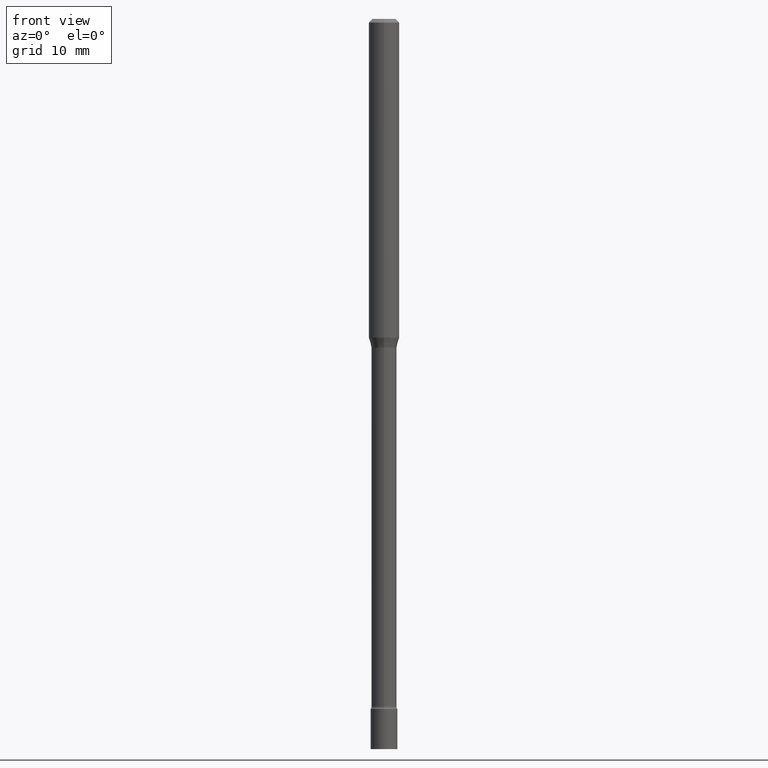
[diagram: clean part render]
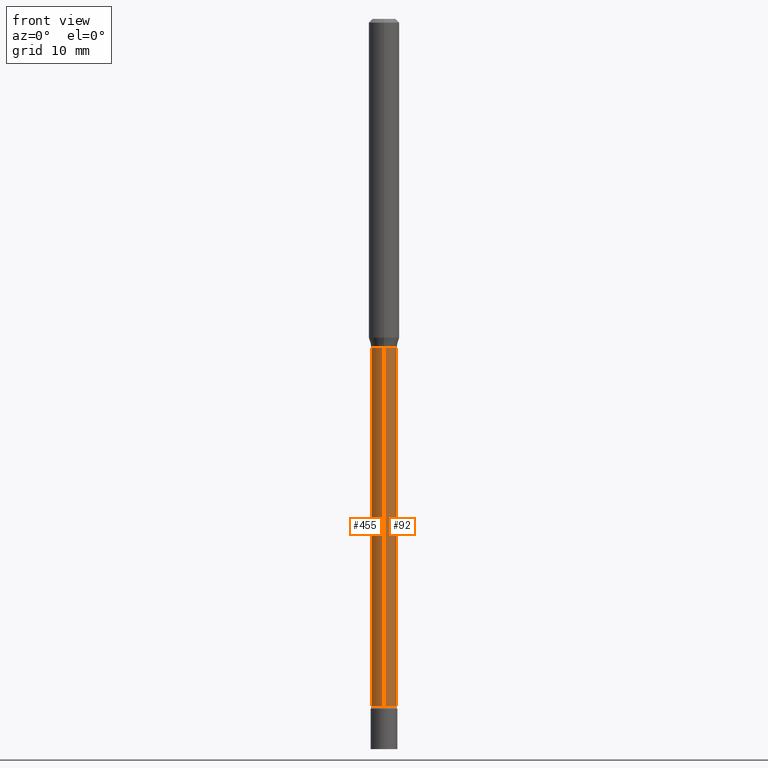
[diagram: same view with one multi-face feature highlighted, each face labeled with its STEP entity id]
A machine part, front view. The highlighted faces form ONE feature: a constant-radius fillet chain: 2 tangent blend faces with common blend radius 1.3132 mm. The faces share edges in the B-rep.
Their STEP definitions:
[1] entity #92 (Cylinder):
#9 = CARTESIAN_POINT ( 'NONE',  ( -3.610191704363808417E-16, -0.05170000000000012780, 1.805107173320482273E-16 ) ) ;
#34 = ORIENTED_EDGE ( 'NONE', *, *, #513, .F. ) ;
#36 = DIRECTION ( 'NONE',  ( -6.982962677686265922E-15, -1.000000000000000000, 3.491503236596668913E-15 ) ) ;
#44 = VERTEX_POINT ( 'NONE', #105 ) ;
#60 = CARTESIAN_POINT ( 'NONE',  ( 6.909905994532571986E-29, -9.865638007779597424E-15, -2.825613307291703347 ) ) ;
#67 = EDGE_CURVE ( 'NONE', #44, #433, #512, .T. ) ;
#92 = ADVANCED_FACE ( 'NONE', ( #505 ), #227, .T. ) ;
#105 = CARTESIAN_POINT ( 'NONE',  ( -3.610191704363469207E-16, -0.05170000000000472135, -1.351974787463811056 ) ) ;
#127 = EDGE_CURVE ( 'NONE', #279, #365, #254, .T. ) ;
#146 = DIRECTION ( 'NONE',  ( -6.982962677686266711E-15, -1.000000000000000000, 5.284038672464726492E-15 ) ) ;
#147 = CARTESIAN_POINT ( 'NONE',  ( -3.610191704363126052E-16, -0.05170000000001011287, -2.825613307291703347 ) ) ;
#149 = AXIS2_PLACEMENT_3D ( 'NONE', #430, #509, #146 ) ;
#153 = CARTESIAN_POINT ( 'NONE',  ( 0.000000000000000000, 0.000000000000000000, 0.000000000000000000 ) ) ;
#154 = DIRECTION ( 'NONE',  ( -2.445453515065579470E-29, 3.491503236596668913E-15, 1.000000000000000000 ) ) ;
#191 = ORIENTED_EDGE ( 'NONE', *, *, #67, .F. ) ;
#227 = CYLINDRICAL_SURFACE ( 'NONE', #457, 0.05170000000000012780 ) ;
#234 = LINE ( 'NONE', #398, #443 ) ;
#241 = DIRECTION ( 'NONE',  ( -2.445453515065579470E-29, 3.491503236596668913E-15, 1.000000000000000000 ) ) ;
#254 = CIRCLE ( 'NONE', #406, 0.05170000000000024576 ) ;
#268 = CARTESIAN_POINT ( 'NONE',  ( 3.790745495280832746E-16, 0.05169999999999037865, -2.825613307291703347 ) ) ;
#278 = EDGE_LOOP ( 'NONE', ( #474, #395, #191, #34 ) ) ;
#279 = VERTEX_POINT ( 'NONE', #147 ) ;
#365 = VERTEX_POINT ( 'NONE', #268 ) ;
#368 = EDGE_CURVE ( 'NONE', #365, #433, #234, .T. ) ;
#372 = LINE ( 'NONE', #9, #376 ) ;
#376 = VECTOR ( 'NONE', #241, 39.37007874015748143 ) ;
#395 = ORIENTED_EDGE ( 'NONE', *, *, #368, .T. ) ;
#398 = CARTESIAN_POINT ( 'NONE',  ( 3.673505943879726548E-16, 0.05170000000000012780, -1.805107173320482273E-16 ) ) ;
#406 = AXIS2_PLACEMENT_3D ( 'NONE', #60, #454, #418 ) ;
#418 = DIRECTION ( 'NONE',  ( -6.982962677686265922E-15, -1.000000000000000000, 0.000000000000000000 ) ) ;
#430 = CARTESIAN_POINT ( 'NONE',  ( 3.306191496283416407E-29, -4.720424346226990605E-15, -1.351974787463811278 ) ) ;
#433 = VERTEX_POINT ( 'NONE', #437 ) ;
#437 = CARTESIAN_POINT ( 'NONE',  ( 3.673505943880415323E-16, 0.05169999999999527751, -1.351974787463811722 ) ) ;
#443 = VECTOR ( 'NONE', #154, 39.37007874015748143 ) ;
#452 = DIRECTION ( 'NONE',  ( -2.445453515065579190E-29, 3.491503236596668519E-15, 1.000000000000000000 ) ) ;
#454 = DIRECTION ( 'NONE',  ( -2.445453515065579190E-29, 3.491503236596668519E-15, 1.000000000000000000 ) ) ;
#457 = AXIS2_PLACEMENT_3D ( 'NONE', #153, #452, #36 ) ;
#474 = ORIENTED_EDGE ( 'NONE', *, *, #127, .T. ) ;
#505 = FACE_OUTER_BOUND ( 'NONE', #278, .T. ) ;
#509 = DIRECTION ( 'NONE',  ( -2.445453515065579190E-29, 3.491503236596668519E-15, 1.000000000000000000 ) ) ;
#512 = CIRCLE ( 'NONE', #149, 0.05169999999999999596 ) ;
#513 = EDGE_CURVE ( 'NONE', #279, #44, #372, .T. ) ;
[2] entity #455 (Cylinder):
#9 = CARTESIAN_POINT ( 'NONE',  ( -3.610191704363808417E-16, -0.05170000000000012780, 1.805107173320482273E-16 ) ) ;
#13 = AXIS2_PLACEMENT_3D ( 'NONE', #112, #402, #357 ) ;
#44 = VERTEX_POINT ( 'NONE', #105 ) ;
#55 = AXIS2_PLACEMENT_3D ( 'NONE', #335, #87, #489 ) ;
#77 = AXIS2_PLACEMENT_3D ( 'NONE', #248, #336, #481 ) ;
#87 = DIRECTION ( 'NONE',  ( -2.445453515065579190E-29, 3.491503236596668519E-15, 1.000000000000000000 ) ) ;
#105 = CARTESIAN_POINT ( 'NONE',  ( -3.610191704363469207E-16, -0.05170000000000472135, -1.351974787463811056 ) ) ;
#106 = ORIENTED_EDGE ( 'NONE', *, *, #270, .F. ) ;
#112 = CARTESIAN_POINT ( 'NONE',  ( 3.306191496283416407E-29, -4.720424346226990605E-15, -1.351974787463811278 ) ) ;
#129 = FACE_OUTER_BOUND ( 'NONE', #366, .T. ) ;
#147 = CARTESIAN_POINT ( 'NONE',  ( -3.610191704363126052E-16, -0.05170000000001011287, -2.825613307291703347 ) ) ;
#154 = DIRECTION ( 'NONE',  ( -2.445453515065579470E-29, 3.491503236596668913E-15, 1.000000000000000000 ) ) ;
#155 = CIRCLE ( 'NONE', #13, 0.05169999999999999596 ) ;
#160 = ORIENTED_EDGE ( 'NONE', *, *, #223, .T. ) ;
#193 = ORIENTED_EDGE ( 'NONE', *, *, #513, .T. ) ;
#223 = EDGE_CURVE ( 'NONE', #365, #279, #461, .T. ) ;
#234 = LINE ( 'NONE', #398, #443 ) ;
#241 = DIRECTION ( 'NONE',  ( -2.445453515065579470E-29, 3.491503236596668913E-15, 1.000000000000000000 ) ) ;
#248 = CARTESIAN_POINT ( 'NONE',  ( 0.000000000000000000, 0.000000000000000000, 0.000000000000000000 ) ) ;
#268 = CARTESIAN_POINT ( 'NONE',  ( 3.790745495280832746E-16, 0.05169999999999037865, -2.825613307291703347 ) ) ;
#270 = EDGE_CURVE ( 'NONE', #433, #44, #155, .T. ) ;
#279 = VERTEX_POINT ( 'NONE', #147 ) ;
#335 = CARTESIAN_POINT ( 'NONE',  ( 6.909905994532571986E-29, -9.865638007779597424E-15, -2.825613307291703347 ) ) ;
#336 = DIRECTION ( 'NONE',  ( -2.445453515065579190E-29, 3.491503236596668519E-15, 1.000000000000000000 ) ) ;
#357 = DIRECTION ( 'NONE',  ( -6.982962677686266711E-15, -1.000000000000000000, 5.284038672464726492E-15 ) ) ;
#365 = VERTEX_POINT ( 'NONE', #268 ) ;
#366 = EDGE_LOOP ( 'NONE', ( #518, #160, #193, #106 ) ) ;
#368 = EDGE_CURVE ( 'NONE', #365, #433, #234, .T. ) ;
#372 = LINE ( 'NONE', #9, #376 ) ;
#376 = VECTOR ( 'NONE', #241, 39.37007874015748143 ) ;
#398 = CARTESIAN_POINT ( 'NONE',  ( 3.673505943879726548E-16, 0.05170000000000012780, -1.805107173320482273E-16 ) ) ;
#402 = DIRECTION ( 'NONE',  ( -2.445453515065579190E-29, 3.491503236596668519E-15, 1.000000000000000000 ) ) ;
#433 = VERTEX_POINT ( 'NONE', #437 ) ;
#437 = CARTESIAN_POINT ( 'NONE',  ( 3.673505943880415323E-16, 0.05169999999999527751, -1.351974787463811722 ) ) ;
#443 = VECTOR ( 'NONE', #154, 39.37007874015748143 ) ;
#448 = CYLINDRICAL_SURFACE ( 'NONE', #77, 0.05170000000000012780 ) ;
#455 = ADVANCED_FACE ( 'NONE', ( #129 ), #448, .T. ) ;
#461 = CIRCLE ( 'NONE', #55, 0.05170000000000024576 ) ;
#481 = DIRECTION ( 'NONE',  ( -6.982962677686265922E-15, -1.000000000000000000, 3.491503236596668913E-15 ) ) ;
#489 = DIRECTION ( 'NONE',  ( -6.982962677686265922E-15, -1.000000000000000000, 0.000000000000000000 ) ) ;
#513 = EDGE_CURVE ( 'NONE', #279, #44, #372, .T. ) ;
#518 = ORIENTED_EDGE ( 'NONE', *, *, #368, .F. ) ;